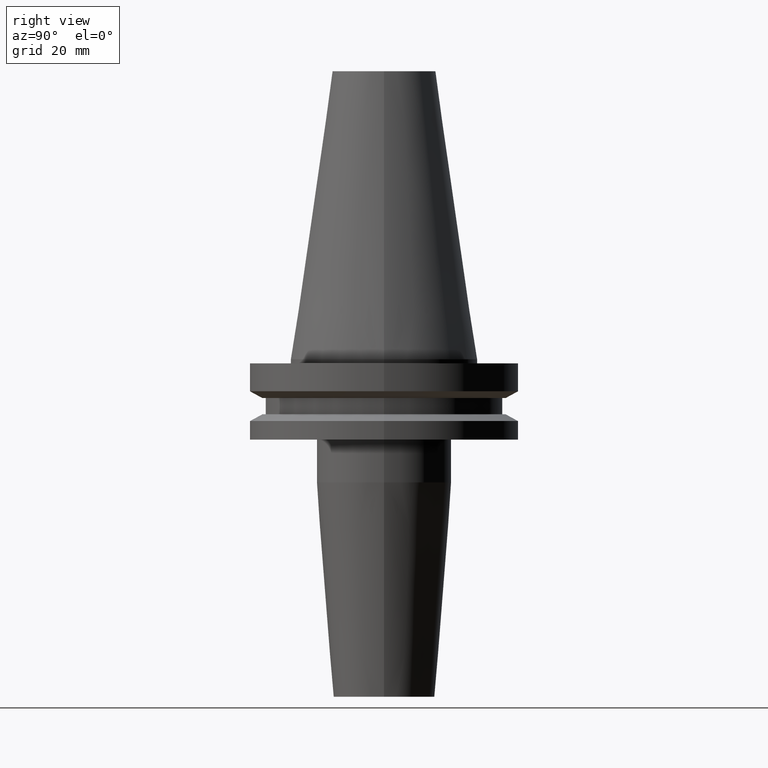
[diagram: clean part render]
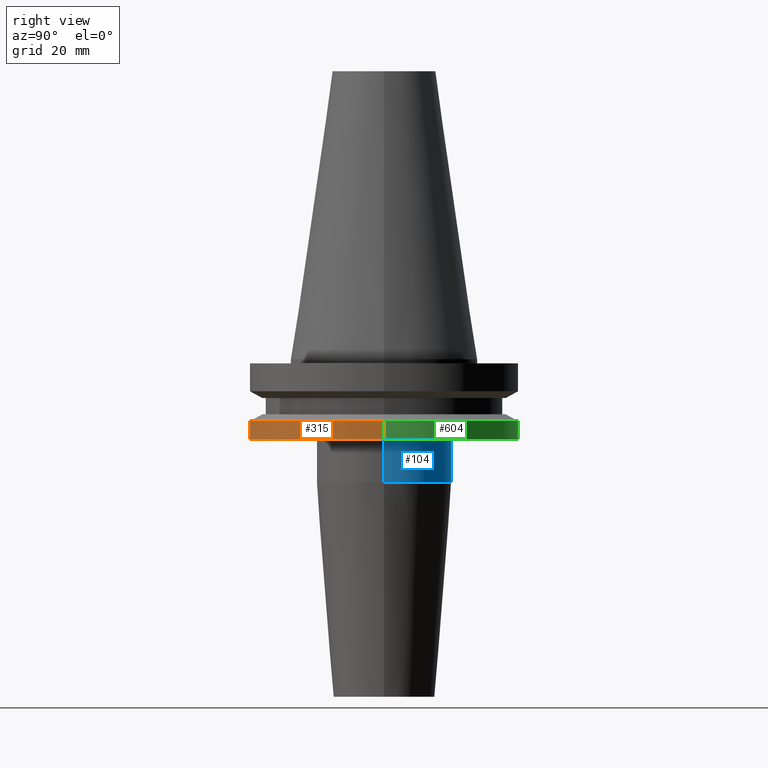
[diagram: same view with three faces highlighted in distinct colors, each labeled with its STEP entity id]
A machine part, right view with three faces highlighted in distinct colors.
Their STEP definitions:

[orange] entity #315 — the highlighted cylindrical surface (partial cylindrical patch) has radius 31.75 mm, axis along (-0, -0, 1).
#2 = ORIENTED_EDGE ( 'NONE', *, *, #80, .F. ) ;
#20 = DIRECTION ( 'NONE',  ( -0.000000000000000000, -0.000000000000000000, 1.000000000000000000 ) ) ;
#25 = ORIENTED_EDGE ( 'NONE', *, *, #469, .F. ) ;
#29 = CIRCLE ( 'NONE', #673, 31.75000000000000000 ) ;
#42 = VERTEX_POINT ( 'NONE', #503 ) ;
#80 = EDGE_CURVE ( 'NONE', #177, #691, #29, .T. ) ;
#100 = CARTESIAN_POINT ( 'NONE',  ( 0.000000000000000000, 0.000000000000000000, -19.04999999999999716 ) ) ;
#101 = CARTESIAN_POINT ( 'NONE',  ( 31.75000000000000000, 0.000000000000000000, 68.25000000000000000 ) ) ;
#106 = ORIENTED_EDGE ( 'NONE', *, *, #424, .T. ) ;
#109 = ORIENTED_EDGE ( 'NONE', *, *, #275, .T. ) ;
#118 = CARTESIAN_POINT ( 'NONE',  ( 0.000000000000000000, 0.000000000000000000, 68.25000000000000000 ) ) ;
#125 = CYLINDRICAL_SURFACE ( 'NONE', #483, 31.75000000000000000 ) ;
#129 = CIRCLE ( 'NONE', #567, 31.74999999999999289 ) ;
#176 = DIRECTION ( 'NONE',  ( -0.000000000000000000, -0.000000000000000000, 1.000000000000000000 ) ) ;
#177 = VERTEX_POINT ( 'NONE', #638 ) ;
#200 = VERTEX_POINT ( 'NONE', #584 ) ;
#242 = VECTOR ( 'NONE', #631, 1000.000000000000000 ) ;
#256 = DIRECTION ( 'NONE',  ( 1.000000000000000000, 0.000000000000000000, 0.000000000000000000 ) ) ;
#273 = CARTESIAN_POINT ( 'NONE',  ( 31.75000000000000000, 0.000000000000000000, -14.65472339340266572 ) ) ;
#275 = EDGE_CURVE ( 'NONE', #42, #691, #628, .T. ) ;
#292 = FACE_OUTER_BOUND ( 'NONE', #504, .T. ) ;
#310 = DIRECTION ( 'NONE',  ( 1.000000000000000000, 0.000000000000000000, 0.000000000000000000 ) ) ;
#315 = ADVANCED_FACE ( 'NONE', ( #292 ), #125, .T. ) ;
#321 = CARTESIAN_POINT ( 'NONE',  ( 0.000000000000000000, 0.000000000000000000, -14.65472339340266572 ) ) ;
#333 = DIRECTION ( 'NONE',  ( -0.000000000000000000, -0.000000000000000000, 1.000000000000000000 ) ) ;
#337 = VECTOR ( 'NONE', #333, 1000.000000000000000 ) ;
#373 = DIRECTION ( 'NONE',  ( -0.000000000000000000, -0.000000000000000000, 1.000000000000000000 ) ) ;
#424 = EDGE_CURVE ( 'NONE', #200, #42, #129, .T. ) ;
#450 = CARTESIAN_POINT ( 'NONE',  ( -31.75000000000000000, 3.888253587292846476E-15, 68.25000000000000000 ) ) ;
#469 = EDGE_CURVE ( 'NONE', #200, #177, #505, .T. ) ;
#483 = AXIS2_PLACEMENT_3D ( 'NONE', #118, #176, #488 ) ;
#488 = DIRECTION ( 'NONE',  ( 1.000000000000000000, 0.000000000000000000, 0.000000000000000000 ) ) ;
#503 = CARTESIAN_POINT ( 'NONE',  ( 31.74999999999999289, 0.000000000000000000, -19.04999999999999716 ) ) ;
#504 = EDGE_LOOP ( 'NONE', ( #25, #106, #109, #2 ) ) ;
#505 = LINE ( 'NONE', #450, #242 ) ;
#567 = AXIS2_PLACEMENT_3D ( 'NONE', #100, #20, #256 ) ;
#584 = CARTESIAN_POINT ( 'NONE',  ( -31.74999999999999289, 3.888253587292845687E-15, -19.04999999999999716 ) ) ;
#628 = LINE ( 'NONE', #101, #337 ) ;
#631 = DIRECTION ( 'NONE',  ( -0.000000000000000000, -0.000000000000000000, 1.000000000000000000 ) ) ;
#638 = CARTESIAN_POINT ( 'NONE',  ( -31.75000000000000000, 3.888253587292846476E-15, -14.65472339340266572 ) ) ;
#673 = AXIS2_PLACEMENT_3D ( 'NONE', #321, #373, #310 ) ;
#691 = VERTEX_POINT ( 'NONE', #273 ) ;

[blue] entity #104 — the highlighted cylindrical surface (partial cylindrical patch) has radius 16 mm, axis along (-0, -0, 1).
#10 = VERTEX_POINT ( 'NONE', #78 ) ;
#22 = AXIS2_PLACEMENT_3D ( 'NONE', #87, #32, #459 ) ;
#32 = DIRECTION ( 'NONE',  ( -0.000000000000000000, -0.000000000000000000, 1.000000000000000000 ) ) ;
#67 = AXIS2_PLACEMENT_3D ( 'NONE', #563, #258, #246 ) ;
#78 = CARTESIAN_POINT ( 'NONE',  ( 15.99999999999999289, 0.000000000000000000, -29.17518105529640948 ) ) ;
#87 = CARTESIAN_POINT ( 'NONE',  ( 0.000000000000000000, 0.000000000000000000, -19.04999999999999716 ) ) ;
#93 = CARTESIAN_POINT ( 'NONE',  ( -15.99999999999999289, 1.959434878635764343E-15, -29.17518105529640948 ) ) ;
#104 = ADVANCED_FACE ( 'NONE', ( #622 ), #316, .T. ) ;
#122 = DIRECTION ( 'NONE',  ( -0.000000000000000000, -0.000000000000000000, 1.000000000000000000 ) ) ;
#123 = VERTEX_POINT ( 'NONE', #632 ) ;
#182 = ORIENTED_EDGE ( 'NONE', *, *, #479, .F. ) ;
#201 = CARTESIAN_POINT ( 'NONE',  ( 15.99999999999999289, 0.000000000000000000, 0.000000000000000000 ) ) ;
#210 = VECTOR ( 'NONE', #601, 1000.000000000000000 ) ;
#237 = DIRECTION ( 'NONE',  ( 1.000000000000000000, 0.000000000000000000, 0.000000000000000000 ) ) ;
#246 = DIRECTION ( 'NONE',  ( 1.000000000000000000, 0.000000000000000000, 0.000000000000000000 ) ) ;
#258 = DIRECTION ( 'NONE',  ( -0.000000000000000000, -0.000000000000000000, 1.000000000000000000 ) ) ;
#279 = VERTEX_POINT ( 'NONE', #93 ) ;
#283 = LINE ( 'NONE', #352, #210 ) ;
#293 = EDGE_CURVE ( 'NONE', #10, #279, #557, .T. ) ;
#299 = EDGE_CURVE ( 'NONE', #279, #123, #283, .T. ) ;
#309 = AXIS2_PLACEMENT_3D ( 'NONE', #420, #122, #237 ) ;
#316 = CYLINDRICAL_SURFACE ( 'NONE', #67, 15.99999999999999289 ) ;
#341 = ORIENTED_EDGE ( 'NONE', *, *, #558, .F. ) ;
#352 = CARTESIAN_POINT ( 'NONE',  ( -15.99999999999999289, 1.959434878635764343E-15, 0.000000000000000000 ) ) ;
#414 = EDGE_LOOP ( 'NONE', ( #770, #714, #182, #341 ) ) ;
#420 = CARTESIAN_POINT ( 'NONE',  ( 0.000000000000000000, 0.000000000000000000, -29.17518105529640948 ) ) ;
#454 = DIRECTION ( 'NONE',  ( -0.000000000000000000, -0.000000000000000000, 1.000000000000000000 ) ) ;
#459 = DIRECTION ( 'NONE',  ( 1.000000000000000000, 0.000000000000000000, 0.000000000000000000 ) ) ;
#479 = EDGE_CURVE ( 'NONE', #585, #123, #687, .T. ) ;
#499 = VECTOR ( 'NONE', #454, 1000.000000000000000 ) ;
#509 = LINE ( 'NONE', #201, #499 ) ;
#557 = CIRCLE ( 'NONE', #309, 15.99999999999999289 ) ;
#558 = EDGE_CURVE ( 'NONE', #10, #585, #509, .T. ) ;
#563 = CARTESIAN_POINT ( 'NONE',  ( 0.000000000000000000, 0.000000000000000000, 0.000000000000000000 ) ) ;
#585 = VERTEX_POINT ( 'NONE', #591 ) ;
#591 = CARTESIAN_POINT ( 'NONE',  ( 15.99999999999999289, 0.000000000000000000, -19.04999999999999716 ) ) ;
#601 = DIRECTION ( 'NONE',  ( -0.000000000000000000, -0.000000000000000000, 1.000000000000000000 ) ) ;
#622 = FACE_OUTER_BOUND ( 'NONE', #414, .T. ) ;
#632 = CARTESIAN_POINT ( 'NONE',  ( -15.99999999999999289, 1.959434878635764343E-15, -19.04999999999999716 ) ) ;
#687 = CIRCLE ( 'NONE', #22, 15.99999999999999289 ) ;
#714 = ORIENTED_EDGE ( 'NONE', *, *, #299, .T. ) ;
#770 = ORIENTED_EDGE ( 'NONE', *, *, #293, .T. ) ;

[green] entity #604 — the highlighted cylindrical surface (partial cylindrical patch) has radius 31.75 mm, axis along (-0, -0, 1).
#17 = DIRECTION ( 'NONE',  ( 1.000000000000000000, 0.000000000000000000, 0.000000000000000000 ) ) ;
#42 = VERTEX_POINT ( 'NONE', #503 ) ;
#51 = CYLINDRICAL_SURFACE ( 'NONE', #516, 31.75000000000000000 ) ;
#60 = EDGE_LOOP ( 'NONE', ( #465, #556, #72, #196 ) ) ;
#72 = ORIENTED_EDGE ( 'NONE', *, *, #718, .F. ) ;
#101 = CARTESIAN_POINT ( 'NONE',  ( 31.75000000000000000, 0.000000000000000000, 68.25000000000000000 ) ) ;
#164 = DIRECTION ( 'NONE',  ( 1.000000000000000000, 0.000000000000000000, 0.000000000000000000 ) ) ;
#177 = VERTEX_POINT ( 'NONE', #638 ) ;
#196 = ORIENTED_EDGE ( 'NONE', *, *, #275, .F. ) ;
#200 = VERTEX_POINT ( 'NONE', #584 ) ;
#212 = CARTESIAN_POINT ( 'NONE',  ( 0.000000000000000000, 0.000000000000000000, -19.04999999999999716 ) ) ;
#242 = VECTOR ( 'NONE', #631, 1000.000000000000000 ) ;
#273 = CARTESIAN_POINT ( 'NONE',  ( 31.75000000000000000, 0.000000000000000000, -14.65472339340266572 ) ) ;
#275 = EDGE_CURVE ( 'NONE', #42, #691, #628, .T. ) ;
#333 = DIRECTION ( 'NONE',  ( -0.000000000000000000, -0.000000000000000000, 1.000000000000000000 ) ) ;
#337 = VECTOR ( 'NONE', #333, 1000.000000000000000 ) ;
#401 = CARTESIAN_POINT ( 'NONE',  ( 0.000000000000000000, 0.000000000000000000, 68.25000000000000000 ) ) ;
#408 = DIRECTION ( 'NONE',  ( -0.000000000000000000, -0.000000000000000000, 1.000000000000000000 ) ) ;
#422 = CIRCLE ( 'NONE', #637, 31.75000000000000000 ) ;
#450 = CARTESIAN_POINT ( 'NONE',  ( -31.75000000000000000, 3.888253587292846476E-15, 68.25000000000000000 ) ) ;
#465 = ORIENTED_EDGE ( 'NONE', *, *, #660, .T. ) ;
#469 = EDGE_CURVE ( 'NONE', #200, #177, #505, .T. ) ;
#474 = CIRCLE ( 'NONE', #669, 31.74999999999999289 ) ;
#503 = CARTESIAN_POINT ( 'NONE',  ( 31.74999999999999289, 0.000000000000000000, -19.04999999999999716 ) ) ;
#505 = LINE ( 'NONE', #450, #242 ) ;
#516 = AXIS2_PLACEMENT_3D ( 'NONE', #401, #526, #164 ) ;
#526 = DIRECTION ( 'NONE',  ( -0.000000000000000000, -0.000000000000000000, 1.000000000000000000 ) ) ;
#556 = ORIENTED_EDGE ( 'NONE', *, *, #469, .T. ) ;
#584 = CARTESIAN_POINT ( 'NONE',  ( -31.74999999999999289, 3.888253587292845687E-15, -19.04999999999999716 ) ) ;
#604 = ADVANCED_FACE ( 'NONE', ( #775 ), #51, .T. ) ;
#628 = LINE ( 'NONE', #101, #337 ) ;
#631 = DIRECTION ( 'NONE',  ( -0.000000000000000000, -0.000000000000000000, 1.000000000000000000 ) ) ;
#637 = AXIS2_PLACEMENT_3D ( 'NONE', #659, #726, #17 ) ;
#638 = CARTESIAN_POINT ( 'NONE',  ( -31.75000000000000000, 3.888253587292846476E-15, -14.65472339340266572 ) ) ;
#640 = DIRECTION ( 'NONE',  ( 1.000000000000000000, 0.000000000000000000, 0.000000000000000000 ) ) ;
#659 = CARTESIAN_POINT ( 'NONE',  ( 0.000000000000000000, 0.000000000000000000, -14.65472339340266572 ) ) ;
#660 = EDGE_CURVE ( 'NONE', #42, #200, #474, .T. ) ;
#669 = AXIS2_PLACEMENT_3D ( 'NONE', #212, #408, #640 ) ;
#691 = VERTEX_POINT ( 'NONE', #273 ) ;
#718 = EDGE_CURVE ( 'NONE', #691, #177, #422, .T. ) ;
#726 = DIRECTION ( 'NONE',  ( -0.000000000000000000, -0.000000000000000000, 1.000000000000000000 ) ) ;
#775 = FACE_OUTER_BOUND ( 'NONE', #60, .T. ) ;